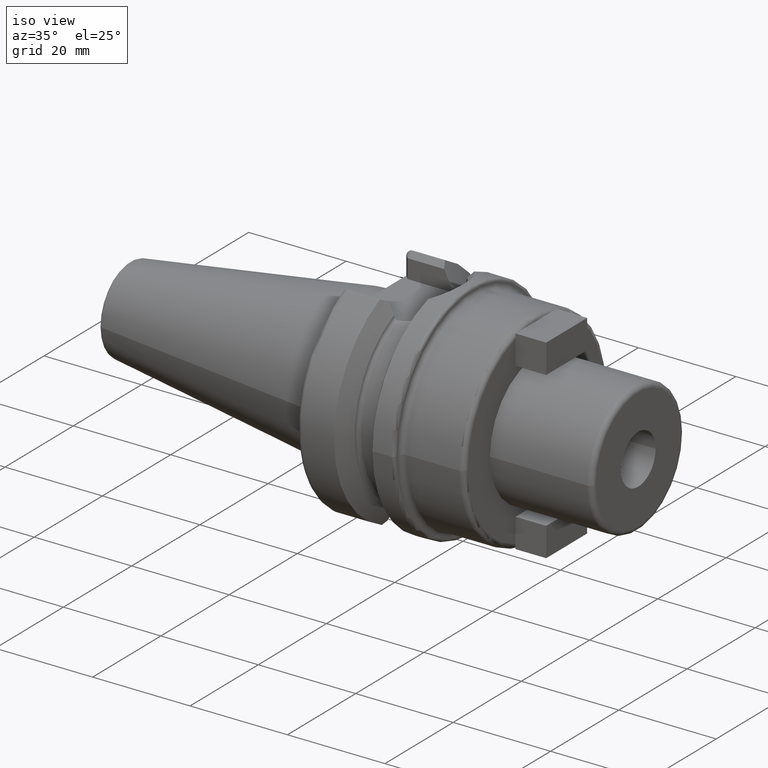
[diagram: clean part render]
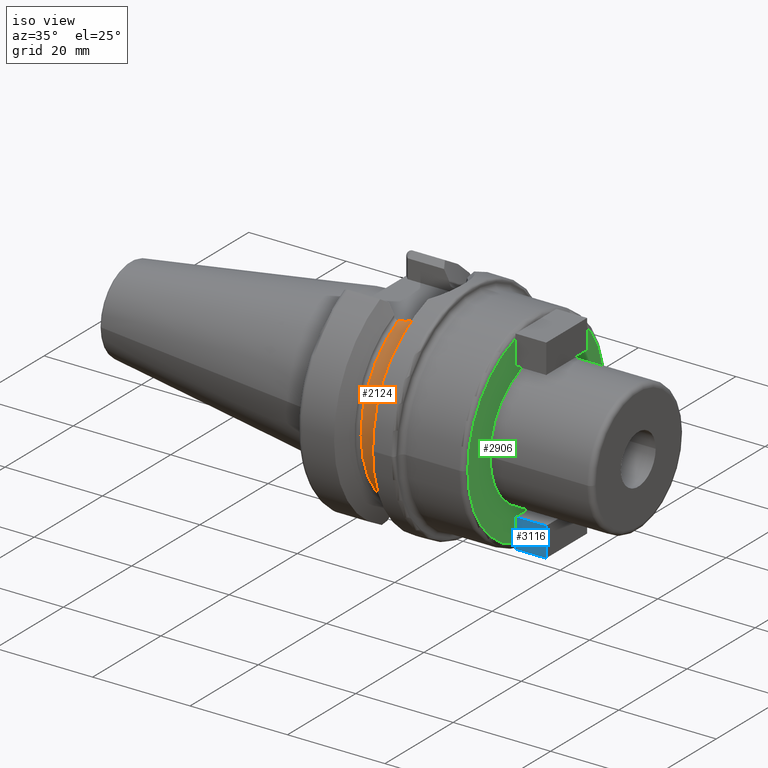
[diagram: same view with three faces highlighted in distinct colors, each labeled with its STEP entity id]
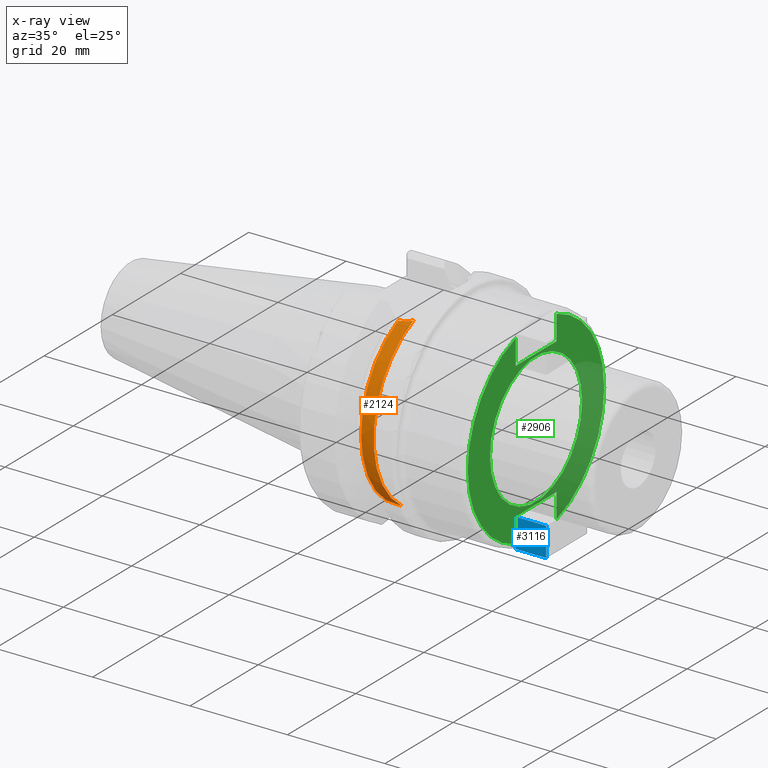
[diagram: x-ray of the same camera — body ghosted, the three highlighted faces saturated]
A machine part, iso view with three faces highlighted in distinct colors.
The next image is the same camera in x-ray (body ghosted, the three faces saturated) — at least one of them is partly hidden behind the body in this view.
Their STEP definitions:

[orange] entity #2124 — the highlighted cylindrical surface (partial cylindrical patch) has radius 18.875 mm, axis along (1, 0, 0).
#409=CARTESIAN_POINT('',(1.48875E1,0.E0,0.E0));
#410=DIRECTION('',(-1.E0,0.E0,0.E0));
#411=DIRECTION('',(0.E0,-3.805635924078E-1,-9.247547524256E-1));
#412=AXIS2_PLACEMENT_3D('',#409,#410,#411);
#433=CARTESIAN_POINT('',(1.48875E1,-7.183137806697E0,-1.745474595203E1));
#434=CARTESIAN_POINT('',(1.461036501125E1,-7.327142609799E0,-1.739548376922E1));
#435=CARTESIAN_POINT('',(1.404920492439E1,-7.578313334037E0,-1.728803651447E1));
#436=CARTESIAN_POINT('',(1.318480954598E1,-7.853460451226E0,-1.716416337693E1));
#437=CARTESIAN_POINT('',(1.260448853217E1,-7.969632667405E0,-1.711001901788E1));
#438=CARTESIAN_POINT('',(1.23125E1,-8.011817443627E0,-1.709024301319E1));
#440=CARTESIAN_POINT('',(1.23125E1,0.E0,0.E0));
#441=DIRECTION('',(-1.E0,0.E0,0.E0));
#442=DIRECTION('',(0.E0,-4.244671493312E-1,-9.054433384473E-1));
#443=AXIS2_PLACEMENT_3D('',#440,#441,#442);
#445=CARTESIAN_POINT('',(1.23125E1,-8.011817443627E0,1.709024301319E1));
#446=CARTESIAN_POINT('',(1.260448853217E1,-7.969632667405E0,1.711001901788E1));
#447=CARTESIAN_POINT('',(1.318480954598E1,-7.853460451226E0,1.716416337693E1));
#448=CARTESIAN_POINT('',(1.404920492439E1,-7.578313334037E0,1.728803651447E1));
#449=CARTESIAN_POINT('',(1.461036501125E1,-7.327142609799E0,1.739548376922E1));
#450=CARTESIAN_POINT('',(1.48875E1,-7.183137806697E0,1.745474595203E1));
#1360=CARTESIAN_POINT('',(1.23125E1,-8.011817443627E0,-1.709024301319E1));
#1361=CARTESIAN_POINT('',(1.23125E1,-8.011817443627E0,1.709024301319E1));
#1362=VERTEX_POINT('',#1360);
#1363=VERTEX_POINT('',#1361);
#1372=CARTESIAN_POINT('',(1.48875E1,-7.183137806697E0,-1.745474595203E1));
#1373=CARTESIAN_POINT('',(1.48875E1,-7.183137806697E0,1.745474595203E1));
#1374=VERTEX_POINT('',#1372);
#1375=VERTEX_POINT('',#1373);
#2111=CARTESIAN_POINT('',(9.2E0,0.E0,0.E0));
#2112=DIRECTION('',(1.E0,0.E0,0.E0));
#2113=DIRECTION('',(0.E0,-1.E0,0.E0));
#2114=AXIS2_PLACEMENT_3D('',#2111,#2112,#2113);
#2115=CYLINDRICAL_SURFACE('',#2114,1.8875E1);
#2116=ORIENTED_EDGE('',*,*,#2032,.T.);
#2118=ORIENTED_EDGE('',*,*,#2117,.T.);
#2120=ORIENTED_EDGE('',*,*,#2119,.T.);
#2121=ORIENTED_EDGE('',*,*,#2090,.F.);
#2122=EDGE_LOOP('',(#2116,#2118,#2120,#2121));
#2123=FACE_OUTER_BOUND('',#2122,.F.);
#2124=ADVANCED_FACE('',(#2123),#2115,.T.);
#413=CIRCLE('',#412,1.8875E1);
#439=B_SPLINE_CURVE_WITH_KNOTS('',3,(#433,#434,#435,#436,#437,#438),
.UNSPECIFIED.,.F.,.F.,(4,1,1,4),(0.E0,3.333333333333E-1,6.666666666667E-1,1.E0),
.UNSPECIFIED.);
#444=CIRCLE('',#443,1.8875E1);
#451=B_SPLINE_CURVE_WITH_KNOTS('',3,(#445,#446,#447,#448,#449,#450),
.UNSPECIFIED.,.F.,.F.,(4,1,1,4),(0.E0,3.333333333333E-1,6.666666666667E-1,1.E0),
.UNSPECIFIED.);
#2032=EDGE_CURVE('',#1374,#1362,#439,.T.);
#2090=EDGE_CURVE('',#1374,#1375,#413,.T.);
#2117=EDGE_CURVE('',#1362,#1363,#444,.T.);
#2119=EDGE_CURVE('',#1363,#1375,#451,.T.);

[blue] entity #3116 — the highlighted planar face has unit normal (0, -1, 0).
#883=DIRECTION('',(0.E0,0.E0,-1.E0));
#884=VECTOR('',#883,9.212159716611E-1);
#885=CARTESIAN_POINT('',(3.5E1,-6.E0,-1.907878402834E1));
#886=LINE('',#885,#884);
#943=DIRECTION('',(0.E0,0.E0,-1.E0));
#944=VECTOR('',#943,5.078784028339E0);
#945=CARTESIAN_POINT('',(3.5E1,-6.E0,-1.4E1));
#946=LINE('',#945,#944);
#1055=DIRECTION('',(0.E0,0.E0,-1.E0));
#1056=VECTOR('',#1055,6.E0);
#1057=CARTESIAN_POINT('',(4.13E1,-6.E0,-1.4E1));
#1058=LINE('',#1057,#1056);
#1075=DIRECTION('',(1.E0,0.E0,0.E0));
#1076=VECTOR('',#1075,6.3E0);
#1077=CARTESIAN_POINT('',(3.5E1,-6.E0,-1.4E1));
#1078=LINE('',#1077,#1076);
#1087=DIRECTION('',(1.E0,0.E0,0.E0));
#1088=VECTOR('',#1087,6.3E0);
#1089=CARTESIAN_POINT('',(3.5E1,-6.E0,-2.E1));
#1090=LINE('',#1089,#1088);
#1609=CARTESIAN_POINT('',(4.13E1,-6.E0,-1.4E1));
#1610=CARTESIAN_POINT('',(4.13E1,-6.E0,-2.E1));
#1611=VERTEX_POINT('',#1609);
#1612=VERTEX_POINT('',#1610);
#1621=CARTESIAN_POINT('',(3.5E1,-6.E0,-2.E1));
#1622=VERTEX_POINT('',#1621);
#1633=CARTESIAN_POINT('',(3.5E1,-6.E0,-1.4E1));
#1634=CARTESIAN_POINT('',(3.5E1,-6.E0,-1.907878402834E1));
#1635=VERTEX_POINT('',#1633);
#1636=VERTEX_POINT('',#1634);
#3102=CARTESIAN_POINT('',(3.5E1,-6.E0,-1.4E1));
#3103=DIRECTION('',(0.E0,-1.E0,0.E0));
#3104=DIRECTION('',(0.E0,0.E0,-1.E0));
#3105=AXIS2_PLACEMENT_3D('',#3102,#3103,#3104);
#3106=PLANE('',#3105);
#3107=ORIENTED_EDGE('',*,*,#2893,.F.);
#3109=ORIENTED_EDGE('',*,*,#3108,.T.);
#3110=ORIENTED_EDGE('',*,*,#3079,.T.);
#3112=ORIENTED_EDGE('',*,*,#3111,.F.);
#3113=ORIENTED_EDGE('',*,*,#2838,.F.);
#3114=EDGE_LOOP('',(#3107,#3109,#3110,#3112,#3113));
#3115=FACE_OUTER_BOUND('',#3114,.F.);
#3116=ADVANCED_FACE('',(#3115),#3106,.T.);
#2838=EDGE_CURVE('',#1636,#1622,#886,.T.);
#2893=EDGE_CURVE('',#1635,#1636,#946,.T.);
#3079=EDGE_CURVE('',#1611,#1612,#1058,.T.);
#3108=EDGE_CURVE('',#1635,#1611,#1078,.T.);
#3111=EDGE_CURVE('',#1622,#1612,#1090,.T.);

[green] entity #2906 — the highlighted planar face has unit normal (1, 0, 0).
#903=CARTESIAN_POINT('',(3.5E1,0.E0,0.E0));
#904=DIRECTION('',(1.E0,0.E0,0.E0));
#905=DIRECTION('',(0.E0,1.E0,0.E0));
#906=AXIS2_PLACEMENT_3D('',#903,#904,#905);
#908=CARTESIAN_POINT('',(3.5E1,0.E0,0.E0));
#909=DIRECTION('',(-1.E0,0.E0,0.E0));
#910=DIRECTION('',(0.E0,1.E0,0.E0));
#911=AXIS2_PLACEMENT_3D('',#908,#909,#910);
#913=DIRECTION('',(0.E0,0.E0,-1.E0));
#914=VECTOR('',#913,5.078784028339E0);
#915=CARTESIAN_POINT('',(3.5E1,-6.E0,1.907878402834E1));
#916=LINE('',#915,#914);
#917=DIRECTION('',(0.E0,1.E0,0.E0));
#918=VECTOR('',#917,1.2E1);
#919=CARTESIAN_POINT('',(3.5E1,-6.E0,1.4E1));
#920=LINE('',#919,#918);
#921=DIRECTION('',(0.E0,0.E0,1.E0));
#922=VECTOR('',#921,5.078784028339E0);
#923=CARTESIAN_POINT('',(3.5E1,6.E0,1.4E1));
#924=LINE('',#923,#922);
#925=CARTESIAN_POINT('',(3.5E1,0.E0,0.E0));
#926=DIRECTION('',(-1.E0,0.E0,0.E0));
#927=DIRECTION('',(0.E0,3.E-1,9.539392014169E-1));
#928=AXIS2_PLACEMENT_3D('',#925,#926,#927);
#930=CARTESIAN_POINT('',(3.5E1,0.E0,0.E0));
#931=DIRECTION('',(-1.E0,0.E0,0.E0));
#932=DIRECTION('',(0.E0,1.E0,0.E0));
#933=AXIS2_PLACEMENT_3D('',#930,#931,#932);
#935=DIRECTION('',(0.E0,0.E0,1.E0));
#936=VECTOR('',#935,5.078784028339E0);
#937=CARTESIAN_POINT('',(3.5E1,6.E0,-1.907878402834E1));
#938=LINE('',#937,#936);
#939=DIRECTION('',(0.E0,-1.E0,0.E0));
#940=VECTOR('',#939,1.2E1);
#941=CARTESIAN_POINT('',(3.5E1,6.E0,-1.4E1));
#942=LINE('',#941,#940);
#943=DIRECTION('',(0.E0,0.E0,-1.E0));
#944=VECTOR('',#943,5.078784028339E0);
#945=CARTESIAN_POINT('',(3.5E1,-6.E0,-1.4E1));
#946=LINE('',#945,#944);
#947=CARTESIAN_POINT('',(3.5E1,0.E0,0.E0));
#948=DIRECTION('',(-1.E0,0.E0,0.E0));
#949=DIRECTION('',(0.E0,-3.E-1,-9.539392014169E-1));
#950=AXIS2_PLACEMENT_3D('',#947,#948,#949);
#952=CARTESIAN_POINT('',(3.5E1,0.E0,0.E0));
#953=DIRECTION('',(-1.E0,0.E0,0.E0));
#954=DIRECTION('',(0.E0,-1.E0,0.E0));
#955=AXIS2_PLACEMENT_3D('',#952,#953,#954);
#1563=CARTESIAN_POINT('',(3.5E1,1.35E1,0.E0));
#1564=CARTESIAN_POINT('',(3.5E1,-1.35E1,0.E0));
#1565=VERTEX_POINT('',#1563);
#1566=VERTEX_POINT('',#1564);
#1587=CARTESIAN_POINT('',(3.5E1,-2.E1,-1.031019714048E-11));
#1588=VERTEX_POINT('',#1587);
#1589=CARTESIAN_POINT('',(3.5E1,2.E1,1.031419394337E-11));
#1590=VERTEX_POINT('',#1589);
#1625=CARTESIAN_POINT('',(3.5E1,-6.E0,1.907878402834E1));
#1626=CARTESIAN_POINT('',(3.5E1,-6.E0,1.4E1));
#1627=VERTEX_POINT('',#1625);
#1628=VERTEX_POINT('',#1626);
#1629=CARTESIAN_POINT('',(3.5E1,6.E0,1.4E1));
#1630=VERTEX_POINT('',#1629);
#1631=CARTESIAN_POINT('',(3.5E1,6.E0,1.907878402834E1));
#1632=VERTEX_POINT('',#1631);
#1633=CARTESIAN_POINT('',(3.5E1,-6.E0,-1.4E1));
#1634=CARTESIAN_POINT('',(3.5E1,-6.E0,-1.907878402834E1));
#1635=VERTEX_POINT('',#1633);
#1636=VERTEX_POINT('',#1634);
#1637=CARTESIAN_POINT('',(3.5E1,6.E0,-1.907878402834E1));
#1638=CARTESIAN_POINT('',(3.5E1,6.E0,-1.4E1));
#1639=VERTEX_POINT('',#1637);
#1640=VERTEX_POINT('',#1638);
#2876=CARTESIAN_POINT('',(3.5E1,0.E0,0.E0));
#2877=DIRECTION('',(1.E0,0.E0,0.E0));
#2878=DIRECTION('',(0.E0,-1.E0,0.E0));
#2879=AXIS2_PLACEMENT_3D('',#2876,#2877,#2878);
#2880=PLANE('',#2879);
#2882=ORIENTED_EDGE('',*,*,#2881,.T.);
#2884=ORIENTED_EDGE('',*,*,#2883,.T.);
#2885=ORIENTED_EDGE('',*,*,#2864,.T.);
#2886=ORIENTED_EDGE('',*,*,#2800,.T.);
#2888=ORIENTED_EDGE('',*,*,#2887,.T.);
#2890=ORIENTED_EDGE('',*,*,#2889,.T.);
#2892=ORIENTED_EDGE('',*,*,#2891,.T.);
#2894=ORIENTED_EDGE('',*,*,#2893,.T.);
#2896=ORIENTED_EDGE('',*,*,#2895,.T.);
#2897=ORIENTED_EDGE('',*,*,#2793,.T.);
#2898=EDGE_LOOP('',(#2882,#2884,#2885,#2886,#2888,#2890,#2892,#2894,#2896,
#2897));
#2899=FACE_OUTER_BOUND('',#2898,.F.);
#2901=ORIENTED_EDGE('',*,*,#2900,.T.);
#2903=ORIENTED_EDGE('',*,*,#2902,.F.);
#2904=EDGE_LOOP('',(#2901,#2903));
#2905=FACE_BOUND('',#2904,.F.);
#2906=ADVANCED_FACE('',(#2899,#2905),#2880,.T.);
#907=CIRCLE('',#906,1.35E1);
#912=CIRCLE('',#911,1.35E1);
#929=CIRCLE('',#928,2.E1);
#934=CIRCLE('',#933,2.E1);
#951=CIRCLE('',#950,2.E1);
#956=CIRCLE('',#955,2.E1);
#2793=EDGE_CURVE('',#1588,#1627,#956,.T.);
#2800=EDGE_CURVE('',#1632,#1590,#929,.T.);
#2864=EDGE_CURVE('',#1630,#1632,#924,.T.);
#2881=EDGE_CURVE('',#1627,#1628,#916,.T.);
#2883=EDGE_CURVE('',#1628,#1630,#920,.T.);
#2887=EDGE_CURVE('',#1590,#1639,#934,.T.);
#2889=EDGE_CURVE('',#1639,#1640,#938,.T.);
#2891=EDGE_CURVE('',#1640,#1635,#942,.T.);
#2893=EDGE_CURVE('',#1635,#1636,#946,.T.);
#2895=EDGE_CURVE('',#1636,#1588,#951,.T.);
#2900=EDGE_CURVE('',#1565,#1566,#907,.T.);
#2902=EDGE_CURVE('',#1565,#1566,#912,.T.);